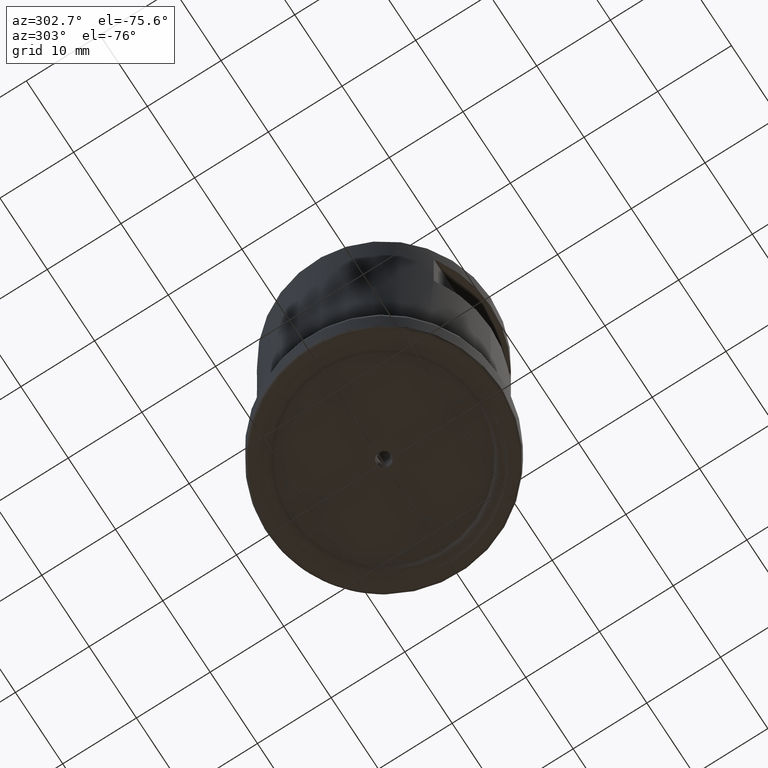
[diagram: clean part render]
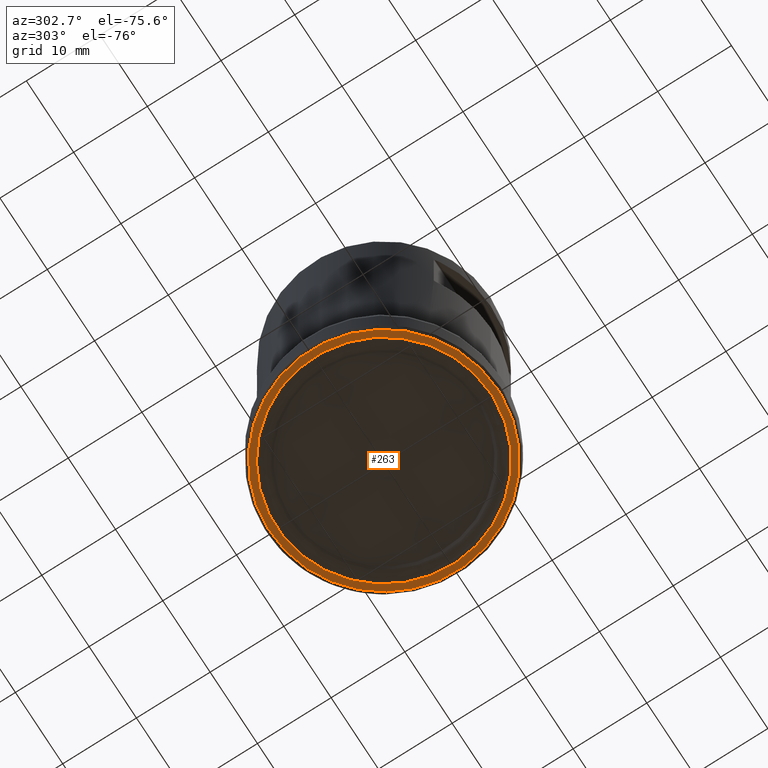
[diagram: same view with one face highlighted and labeled with its STEP entity id]
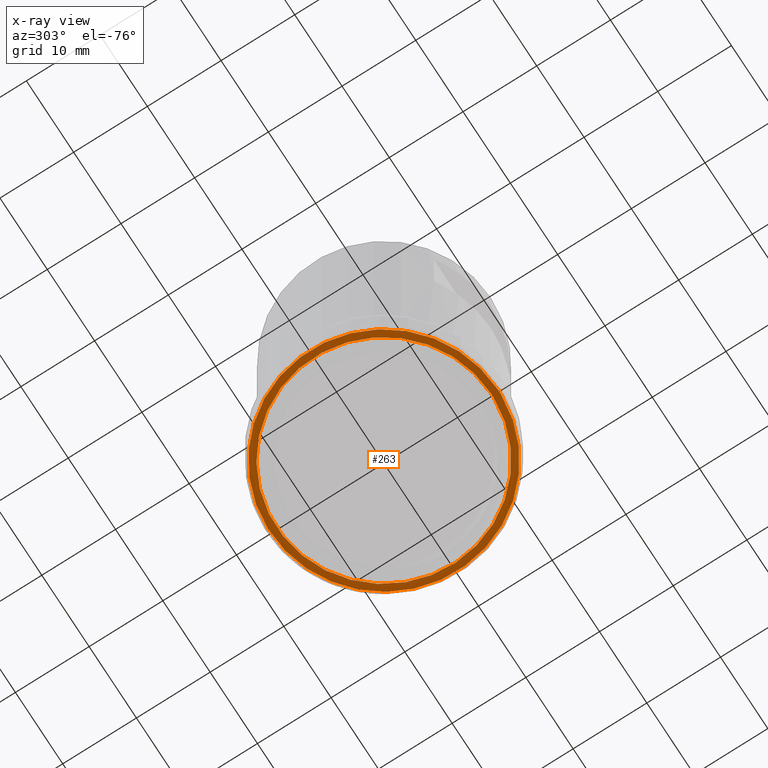
[diagram: x-ray of the same camera — body ghosted, the highlighted face saturated]
A machine part, auxiliary view. The second image highlights one B-rep face of the part: STEP entity #263.
The next image is the same camera in x-ray: the body ghosted, the highlighted face saturated — about 0% of this face is hidden behind the body in this view.
In plain terms, the highlighted face is a SurfaceOfRevolution surface.
Its self-contained STEP definition (entity closure, byte-faithful):
#126=SURFACE_OF_REVOLUTION('',#296,#147);
#147=AXIS1_PLACEMENT('',#3651,#1296);
#263=ADVANCED_FACE('',(#406,#407),#126,.F.);
#296=LINE('',#3650,#317);
#317=VECTOR('',#1295,0.93723034386797);
#406=FACE_BOUND('',#515,.T.);
#407=FACE_BOUND('',#516,.T.);
#515=EDGE_LOOP('',(#693));
#516=EDGE_LOOP('',(#694));
#693=ORIENTED_EDGE('',*,*,#861,.T.);
#694=ORIENTED_EDGE('',*,*,#862,.F.);
#772=VERTEX_POINT('',#3639);
#773=VERTEX_POINT('',#3649);
#861=EDGE_CURVE('',#772,#772,#915,.T.);
#862=EDGE_CURVE('',#773,#773,#916,.T.);
#915=CIRCLE('',#1066,14.557284758109);
#916=CIRCLE('',#1067,15.4843957564796);
#1066=AXIS2_PLACEMENT_3D('',#3638,#1290,#1291);
#1067=AXIS2_PLACEMENT_3D('',#3648,#1293,#1294);
#1290=DIRECTION('',(0.,1.17145536458252E-15,1.));
#1291=DIRECTION('',(0.,-1.,1.17145530442778E-15));
#1293=DIRECTION('',(0.,1.17145536458252E-15,1.));
#1294=DIRECTION('',(0.,-1.,1.17145536458252E-15));
#1295=DIRECTION('',(-0.999999994990867,-1.73806701362989E-5,-9.85706785547337E-5));
#1296=DIRECTION('',(0.,1.17145536458252E-15,1.));
#3638=CARTESIAN_POINT('',(0.,-1.08229467139078E-19,-9.23888953956417E-5));
#3639=CARTESIAN_POINT('',(0.,-14.557284758109,-9.23888953785884E-5));
#3648=CARTESIAN_POINT('',(0.,1.62333947050413E-30,1.38574590170804E-15));
#3649=CARTESIAN_POINT('',(0.,-15.4843957564796,1.95250243779549E-14));
#3650=CARTESIAN_POINT('',(15.327312613217,-2.19999999999999,3.96294770378958E-15));
#3651=CARTESIAN_POINT('',(0.,0.,0.));